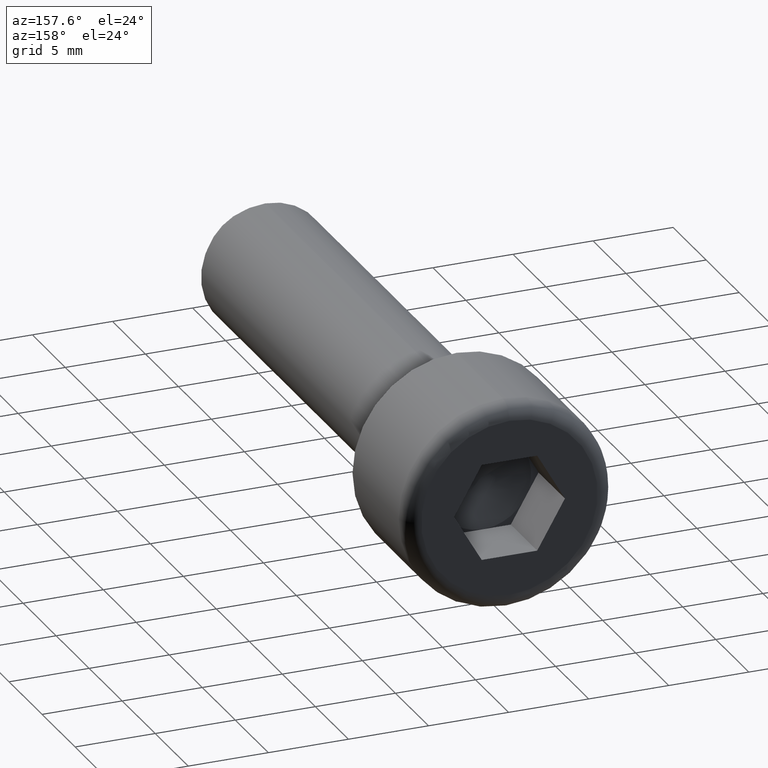
[diagram: clean part render]
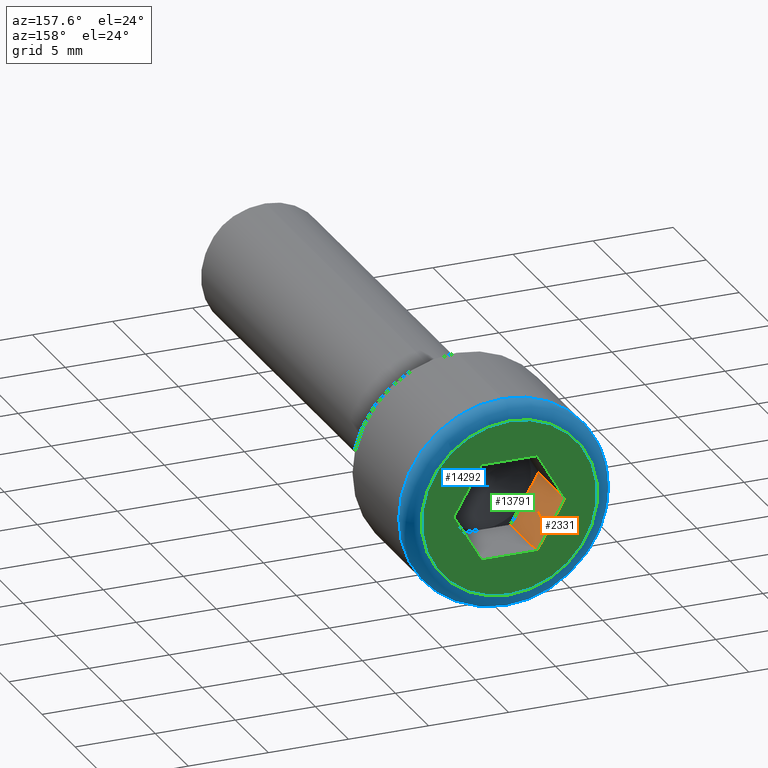
[diagram: same view with three faces highlighted in distinct colors, each labeled with its STEP entity id]
A machine part, auxiliary view with three faces highlighted in distinct colors.
Their STEP definitions:

[orange] entity #2331 — the highlighted planar face has unit normal (-0.866, 0, -0.5).
#673 = CARTESIAN_POINT ( 'NONE',  ( -3.464101615137754400, 8.000000000000000000, -4.440650973077132600E-016 ) ) ;
#976 = ORIENTED_EDGE ( 'NONE', *, *, #15367, .F. ) ;
#1117 = LINE ( 'NONE', #15397, #2705 ) ;
#1213 = VECTOR ( 'NONE', #6864, 1000.000000000000000 ) ;
#1844 = CARTESIAN_POINT ( 'NONE',  ( -1.732050807568877400, 4.000000000000000000, -2.999999999999999600 ) ) ;
#2234 = LINE ( 'NONE', #2478, #5673 ) ;
#2293 = EDGE_CURVE ( 'NONE', #8812, #7750, #1117, .T. ) ;
#2331 = ADVANCED_FACE ( 'NONE', ( #15073 ), #16530, .F. ) ;
#2478 = CARTESIAN_POINT ( 'NONE',  ( -1.732050807568877400, 4.000000000000000000, -2.999999999999999600 ) ) ;
#2705 = VECTOR ( 'NONE', #15344, 1000.000000000000200 ) ;
#2801 = LINE ( 'NONE', #9294, #1213 ) ;
#3260 = VECTOR ( 'NONE', #12111, 1000.000000000000200 ) ;
#4276 = EDGE_CURVE ( 'NONE', #12271, #7750, #14030, .T. ) ;
#4765 = CARTESIAN_POINT ( 'NONE',  ( -1.732050807568877400, 8.000000000000000000, -2.999999999999999600 ) ) ;
#5673 = VECTOR ( 'NONE', #13965, 1000.000000000000200 ) ;
#5818 = CARTESIAN_POINT ( 'NONE',  ( -3.464101615137754400, 4.000000000000000000, -4.440650973077132600E-016 ) ) ;
#5939 = EDGE_LOOP ( 'NONE', ( #8761, #8698, #976, #7688, #16109 ) ) ;
#6864 = DIRECTION ( 'NONE',  ( -0.0000000000000000000, 1.000000000000000000, -0.0000000000000000000 ) ) ;
#7015 = EDGE_CURVE ( 'NONE', #16013, #11195, #2234, .T. ) ;
#7688 = ORIENTED_EDGE ( 'NONE', *, *, #7015, .F. ) ;
#7750 = VERTEX_POINT ( 'NONE', #673 ) ;
#8698 = ORIENTED_EDGE ( 'NONE', *, *, #4276, .F. ) ;
#8761 = ORIENTED_EDGE ( 'NONE', *, *, #2293, .T. ) ;
#8812 = VERTEX_POINT ( 'NONE', #4765 ) ;
#8950 = DIRECTION ( 'NONE',  ( -0.0000000000000000000, 1.000000000000000000, -0.0000000000000000000 ) ) ;
#9294 = CARTESIAN_POINT ( 'NONE',  ( -1.732050807568877400, 4.000000000000000000, -2.999999999999999600 ) ) ;
#9478 = EDGE_CURVE ( 'NONE', #16013, #8812, #2801, .T. ) ;
#9999 = AXIS2_PLACEMENT_3D ( 'NONE', #12773, #14038, #10291 ) ;
#10291 = DIRECTION ( 'NONE',  ( -0.5000000000000000000, 0.0000000000000000000, 0.8660254037844386000 ) ) ;
#11179 = CARTESIAN_POINT ( 'NONE',  ( -3.464101615137754400, 4.000000000000000000, -4.440650973077132600E-016 ) ) ;
#11195 = VERTEX_POINT ( 'NONE', #15141 ) ;
#12111 = DIRECTION ( 'NONE',  ( -0.5000000000000000000, 0.0000000000000000000, 0.8660254037844386000 ) ) ;
#12271 = VERTEX_POINT ( 'NONE', #5818 ) ;
#12773 = CARTESIAN_POINT ( 'NONE',  ( -1.732050807568877400, 4.000000000000000000, -2.999999999999999600 ) ) ;
#13048 = VECTOR ( 'NONE', #8950, 1000.000000000000000 ) ;
#13727 = CARTESIAN_POINT ( 'NONE',  ( -1.732050807568877400, 4.000000000000000000, -2.999999999999999600 ) ) ;
#13965 = DIRECTION ( 'NONE',  ( -0.5000000000000000000, 0.0000000000000000000, 0.8660254037844386000 ) ) ;
#14021 = LINE ( 'NONE', #1844, #3260 ) ;
#14030 = LINE ( 'NONE', #11179, #13048 ) ;
#14038 = DIRECTION ( 'NONE',  ( -0.8660254037844387100, 0.0000000000000000000, -0.5000000000000001100 ) ) ;
#15073 = FACE_OUTER_BOUND ( 'NONE', #5939, .T. ) ;
#15141 = CARTESIAN_POINT ( 'NONE',  ( -2.598076211353315600, 3.999999999999997300, -1.499999999999999800 ) ) ;
#15344 = DIRECTION ( 'NONE',  ( -0.5000000000000000000, 0.0000000000000000000, 0.8660254037844386000 ) ) ;
#15367 = EDGE_CURVE ( 'NONE', #11195, #12271, #14021, .T. ) ;
#15397 = CARTESIAN_POINT ( 'NONE',  ( -1.732050807568877400, 8.000000000000000000, -2.999999999999999600 ) ) ;
#16013 = VERTEX_POINT ( 'NONE', #13727 ) ;
#16109 = ORIENTED_EDGE ( 'NONE', *, *, #9478, .T. ) ;
#16530 = PLANE ( 'NONE',  #9999 ) ;

[blue] entity #14292 — the highlighted toroidal blend (fillet) surface has major radius 5.5 mm and minor (blend) radius 1 mm.
#897 = FACE_OUTER_BOUND ( 'NONE', #10077, .T. ) ;
#1107 = CARTESIAN_POINT ( 'NONE',  ( 0.0000000000000000000, 7.000000000000000000, 6.500000000000000900 ) ) ;
#1337 = AXIS2_PLACEMENT_3D ( 'NONE', #8970, #2614, #14044 ) ;
#2614 = DIRECTION ( 'NONE',  ( 0.0000000000000000000, 1.000000000000000000, 0.0000000000000000000 ) ) ;
#3053 = VERTEX_POINT ( 'NONE', #1107 ) ;
#3084 = FACE_OUTER_BOUND ( 'NONE', #8991, .T. ) ;
#3203 = DIRECTION ( 'NONE',  ( 0.0000000000000000000, 0.0000000000000000000, 1.000000000000000000 ) ) ;
#3331 = CARTESIAN_POINT ( 'NONE',  ( 0.0000000000000000000, 7.000000000000000000, 0.0000000000000000000 ) ) ;
#5060 = CIRCLE ( 'NONE', #1337, 5.500000000000000900 ) ;
#5276 = VERTEX_POINT ( 'NONE', #5944 ) ;
#5944 = CARTESIAN_POINT ( 'NONE',  ( 0.0000000000000000000, 8.000000000000000000, 5.500000000000000900 ) ) ;
#8970 = CARTESIAN_POINT ( 'NONE',  ( 0.0000000000000000000, 8.000000000000000000, 0.0000000000000000000 ) ) ;
#8991 = EDGE_LOOP ( 'NONE', ( #13402 ) ) ;
#9061 = TOROIDAL_SURFACE ( 'NONE', #10271, 5.500000000000000900, 1.000000000000000000 ) ;
#9122 = EDGE_CURVE ( 'NONE', #3053, #3053, #9578, .T. ) ;
#9578 = CIRCLE ( 'NONE', #14846, 6.500000000000000900 ) ;
#10077 = EDGE_LOOP ( 'NONE', ( #14708 ) ) ;
#10271 = AXIS2_PLACEMENT_3D ( 'NONE', #12283, #13509, #3203 ) ;
#11076 = DIRECTION ( 'NONE',  ( -0.0000000000000000000, -1.000000000000000000, -0.0000000000000000000 ) ) ;
#12283 = CARTESIAN_POINT ( 'NONE',  ( 0.0000000000000000000, 7.000000000000000000, 0.0000000000000000000 ) ) ;
#12362 = DIRECTION ( 'NONE',  ( 0.0000000000000000000, 0.0000000000000000000, 1.000000000000000000 ) ) ;
#13402 = ORIENTED_EDGE ( 'NONE', *, *, #16322, .F. ) ;
#13509 = DIRECTION ( 'NONE',  ( 0.0000000000000000000, 1.000000000000000000, 0.0000000000000000000 ) ) ;
#14044 = DIRECTION ( 'NONE',  ( 0.0000000000000000000, 0.0000000000000000000, 1.000000000000000000 ) ) ;
#14292 = ADVANCED_FACE ( 'NONE', ( #897, #3084 ), #9061, .T. ) ;
#14708 = ORIENTED_EDGE ( 'NONE', *, *, #9122, .F. ) ;
#14846 = AXIS2_PLACEMENT_3D ( 'NONE', #3331, #11076, #12362 ) ;
#16322 = EDGE_CURVE ( 'NONE', #5276, #5276, #5060, .T. ) ;

[green] entity #13791 — the highlighted planar face has unit normal (0, 1, 0).
#652 = CARTESIAN_POINT ( 'NONE',  ( 1.732050807568876300, 8.000000000000000000, -3.000000000000000000 ) ) ;
#673 = CARTESIAN_POINT ( 'NONE',  ( -3.464101615137754400, 8.000000000000000000, -4.440650973077132600E-016 ) ) ;
#1117 = LINE ( 'NONE', #15397, #2705 ) ;
#1337 = AXIS2_PLACEMENT_3D ( 'NONE', #8970, #2614, #14044 ) ;
#1776 = LINE ( 'NONE', #5827, #12763 ) ;
#1792 = VERTEX_POINT ( 'NONE', #3716 ) ;
#2109 = PLANE ( 'NONE',  #6801 ) ;
#2213 = DIRECTION ( 'NONE',  ( 0.0000000000000000000, 1.000000000000000000, 0.0000000000000000000 ) ) ;
#2293 = EDGE_CURVE ( 'NONE', #8812, #7750, #1117, .T. ) ;
#2423 = DIRECTION ( 'NONE',  ( -1.000000000000000000, 0.0000000000000000000, 1.251928832280966200E-016 ) ) ;
#2488 = FACE_BOUND ( 'NONE', #3729, .T. ) ;
#2541 = CARTESIAN_POINT ( 'NONE',  ( 3.464101615137755300, 8.000000000000000000, 8.032070669435346800E-016 ) ) ;
#2614 = DIRECTION ( 'NONE',  ( 0.0000000000000000000, 1.000000000000000000, 0.0000000000000000000 ) ) ;
#2619 = VECTOR ( 'NONE', #13639, 1000.000000000000200 ) ;
#2705 = VECTOR ( 'NONE', #15344, 1000.000000000000200 ) ;
#3716 = CARTESIAN_POINT ( 'NONE',  ( 1.732050807568877900, 8.000000000000000000, 3.000000000000000000 ) ) ;
#3729 = EDGE_LOOP ( 'NONE', ( #6511, #13611, #3747, #16518, #4359, #5653 ) ) ;
#3747 = ORIENTED_EDGE ( 'NONE', *, *, #2293, .F. ) ;
#4357 = VERTEX_POINT ( 'NONE', #2541 ) ;
#4359 = ORIENTED_EDGE ( 'NONE', *, *, #10717, .F. ) ;
#4582 = DIRECTION ( 'NONE',  ( -0.5000000000000002200, 0.0000000000000000000, -0.8660254037844384900 ) ) ;
#4765 = CARTESIAN_POINT ( 'NONE',  ( -1.732050807568877400, 8.000000000000000000, -2.999999999999999600 ) ) ;
#5060 = CIRCLE ( 'NONE', #1337, 5.500000000000000900 ) ;
#5276 = VERTEX_POINT ( 'NONE', #5944 ) ;
#5653 = ORIENTED_EDGE ( 'NONE', *, *, #16178, .F. ) ;
#5787 = DIRECTION ( 'NONE',  ( 0.5000000000000001100, 0.0000000000000000000, -0.8660254037844384900 ) ) ;
#5827 = CARTESIAN_POINT ( 'NONE',  ( 3.464101615137755300, 8.000000000000000000, 8.032070669435346800E-016 ) ) ;
#5852 = EDGE_CURVE ( 'NONE', #14738, #8812, #14015, .T. ) ;
#5944 = CARTESIAN_POINT ( 'NONE',  ( 0.0000000000000000000, 8.000000000000000000, 5.500000000000000900 ) ) ;
#6272 = VECTOR ( 'NONE', #5787, 1000.000000000000200 ) ;
#6511 = ORIENTED_EDGE ( 'NONE', *, *, #8592, .F. ) ;
#6801 = AXIS2_PLACEMENT_3D ( 'NONE', #13640, #2213, #12425 ) ;
#7750 = VERTEX_POINT ( 'NONE', #673 ) ;
#7777 = EDGE_CURVE ( 'NONE', #7750, #13974, #9788, .T. ) ;
#8103 = EDGE_LOOP ( 'NONE', ( #14443 ) ) ;
#8592 = EDGE_CURVE ( 'NONE', #13974, #1792, #9776, .T. ) ;
#8812 = VERTEX_POINT ( 'NONE', #4765 ) ;
#8970 = CARTESIAN_POINT ( 'NONE',  ( 0.0000000000000000000, 8.000000000000000000, 0.0000000000000000000 ) ) ;
#9081 = FACE_OUTER_BOUND ( 'NONE', #8103, .T. ) ;
#9776 = LINE ( 'NONE', #10872, #14969 ) ;
#9788 = LINE ( 'NONE', #13536, #2619 ) ;
#10106 = CARTESIAN_POINT ( 'NONE',  ( 1.732050807568876300, 8.000000000000000000, -3.000000000000000000 ) ) ;
#10687 = DIRECTION ( 'NONE',  ( 1.000000000000000000, 0.0000000000000000000, 0.0000000000000000000 ) ) ;
#10717 = EDGE_CURVE ( 'NONE', #4357, #14738, #1776, .T. ) ;
#10845 = LINE ( 'NONE', #13393, #6272 ) ;
#10872 = CARTESIAN_POINT ( 'NONE',  ( -1.732050807568876100, 8.000000000000000000, 3.000000000000000000 ) ) ;
#11629 = VECTOR ( 'NONE', #2423, 1000.000000000000000 ) ;
#12425 = DIRECTION ( 'NONE',  ( 0.0000000000000000000, -0.0000000000000000000, 1.000000000000000000 ) ) ;
#12763 = VECTOR ( 'NONE', #4582, 1000.000000000000200 ) ;
#12881 = CARTESIAN_POINT ( 'NONE',  ( -1.732050807568876100, 8.000000000000000000, 3.000000000000000000 ) ) ;
#13393 = CARTESIAN_POINT ( 'NONE',  ( 1.732050807568877600, 8.000000000000000000, 3.000000000000000000 ) ) ;
#13536 = CARTESIAN_POINT ( 'NONE',  ( -3.464101615137754400, 8.000000000000000000, -4.440650973077132600E-016 ) ) ;
#13611 = ORIENTED_EDGE ( 'NONE', *, *, #7777, .F. ) ;
#13639 = DIRECTION ( 'NONE',  ( 0.5000000000000001100, 0.0000000000000000000, 0.8660254037844384900 ) ) ;
#13640 = CARTESIAN_POINT ( 'NONE',  ( 0.0000000000000000000, 8.000000000000000000, 0.0000000000000000000 ) ) ;
#13791 = ADVANCED_FACE ( 'NONE', ( #2488, #9081 ), #2109, .T. ) ;
#13974 = VERTEX_POINT ( 'NONE', #12881 ) ;
#14015 = LINE ( 'NONE', #10106, #11629 ) ;
#14044 = DIRECTION ( 'NONE',  ( 0.0000000000000000000, 0.0000000000000000000, 1.000000000000000000 ) ) ;
#14443 = ORIENTED_EDGE ( 'NONE', *, *, #16322, .T. ) ;
#14738 = VERTEX_POINT ( 'NONE', #652 ) ;
#14969 = VECTOR ( 'NONE', #10687, 1000.000000000000000 ) ;
#15344 = DIRECTION ( 'NONE',  ( -0.5000000000000000000, 0.0000000000000000000, 0.8660254037844386000 ) ) ;
#15397 = CARTESIAN_POINT ( 'NONE',  ( -1.732050807568877400, 8.000000000000000000, -2.999999999999999600 ) ) ;
#16178 = EDGE_CURVE ( 'NONE', #1792, #4357, #10845, .T. ) ;
#16322 = EDGE_CURVE ( 'NONE', #5276, #5276, #5060, .T. ) ;
#16518 = ORIENTED_EDGE ( 'NONE', *, *, #5852, .F. ) ;